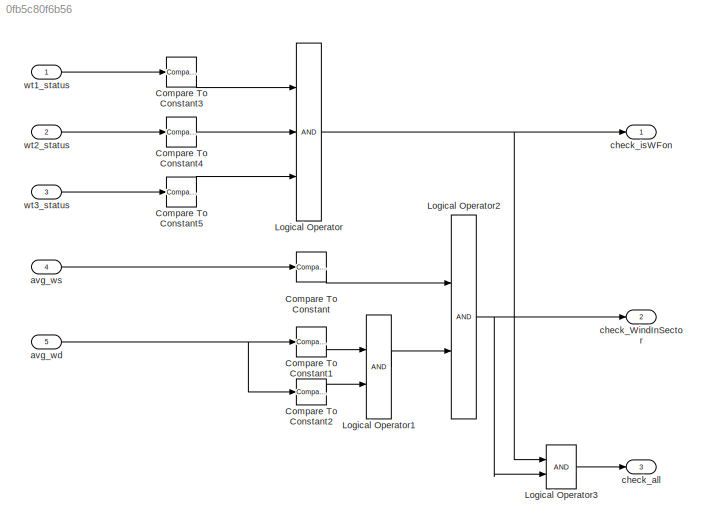
MODEL slx_0fb5c80f6b56
KIND model
CONFIG AbsTol = auto
CONFIG EnableMultiTasking = off
CONFIG FixedStep = sample_time
CONFIG MaxStep = auto
CONFIG MinStep = auto
CONFIG RelTol = 1e-3
CONFIG SampleTimeConstraint = Unconstrained
CONFIG SolverName = FixedStepDiscrete
CONFIG StartTime = 0
CONFIG StopTime = duration
BLOCK [Reference] Compare To Constant  REF=simulink/Logic and Bit
Operations/Compare
To Constant
  SourceBlock = simulink/Logic and Bit\nOperations/Compare\nTo Constant
  SourceType = Compare To Constant
BLOCK [Reference] Compare To Constant1  REF=simulink/Logic and Bit
Operations/Compare
To Constant
  SourceBlock = simulink/Logic and Bit\nOperations/Compare\nTo Constant
  SourceType = Compare To Constant
BLOCK [Reference] Compare To Constant2  REF=simulink/Logic and Bit
Operations/Compare
To Constant
  SourceBlock = simulink/Logic and Bit\nOperations/Compare\nTo Constant
  SourceType = Compare To Constant
BLOCK [Reference] Compare To Constant3  REF=simulink/Logic and Bit
Operations/Compare
To Constant
  SourceBlock = simulink/Logic and Bit\nOperations/Compare\nTo Constant
  SourceType = Compare To Constant
BLOCK [Reference] Compare To Constant4  REF=simulink/Logic and Bit
Operations/Compare
To Constant
  SourceBlock = simulink/Logic and Bit\nOperations/Compare\nTo Constant
  SourceType = Compare To Constant
BLOCK [Reference] Compare To Constant5  REF=simulink/Logic and Bit
Operations/Compare
To Constant
  SourceBlock = simulink/Logic and Bit\nOperations/Compare\nTo Constant
  SourceType = Compare To Constant
BLOCK [Logic] Logical Operator
  AllPortsSameDT = off
  Inputs = 3
  OutDataTypeStr = boolean
BLOCK [Logic] Logical Operator1
  AllPortsSameDT = off
  OutDataTypeStr = boolean
BLOCK [Logic] Logical Operator2
  AllPortsSameDT = off
  OutDataTypeStr = boolean
BLOCK [Logic] Logical Operator3
  AllPortsSameDT = off
  OutDataTypeStr = boolean
BLOCK [Inport] avg_wd
  Port = 5
BLOCK [Inport] avg_ws
  Port = 4
BLOCK [Outport] check_WindInSector
  Port = 2
BLOCK [Outport] check_all
  Port = 3
BLOCK [Outport] check_isWFon
BLOCK [Inport] wt1_status
BLOCK [Inport] wt2_status
  Port = 2
BLOCK [Inport] wt3_status
  Port = 3
LINE Compare To Constant1:1 -> Logical Operator1:1
LINE Compare To Constant2:1 -> Logical Operator1:2
LINE Compare To Constant3:1 -> Logical Operator:1
LINE Compare To Constant4:1 -> Logical Operator:2
LINE Compare To Constant5:1 -> Logical Operator:3
LINE Compare To Constant:1 -> Logical Operator2:1
LINE Logical Operator1:1 -> Logical Operator2:2
NET Logical Operator2:1 -> Logical Operator3:2, check_WindInSector:1
LINE Logical Operator3:1 -> check_all:1
NET Logical Operator:1 -> Logical Operator3:1, check_isWFon:1
NET avg_wd:1 -> Compare To Constant1:1, Compare To Constant2:1
LINE avg_ws:1 -> Compare To Constant:1
LINE wt1_status:1 -> Compare To Constant3:1
LINE wt2_status:1 -> Compare To Constant4:1
LINE wt3_status:1 -> Compare To Constant5:1
note: NET lines group one-source signal fan-out (src -> all destinations, sorted); 1:1 wires keep LINE
